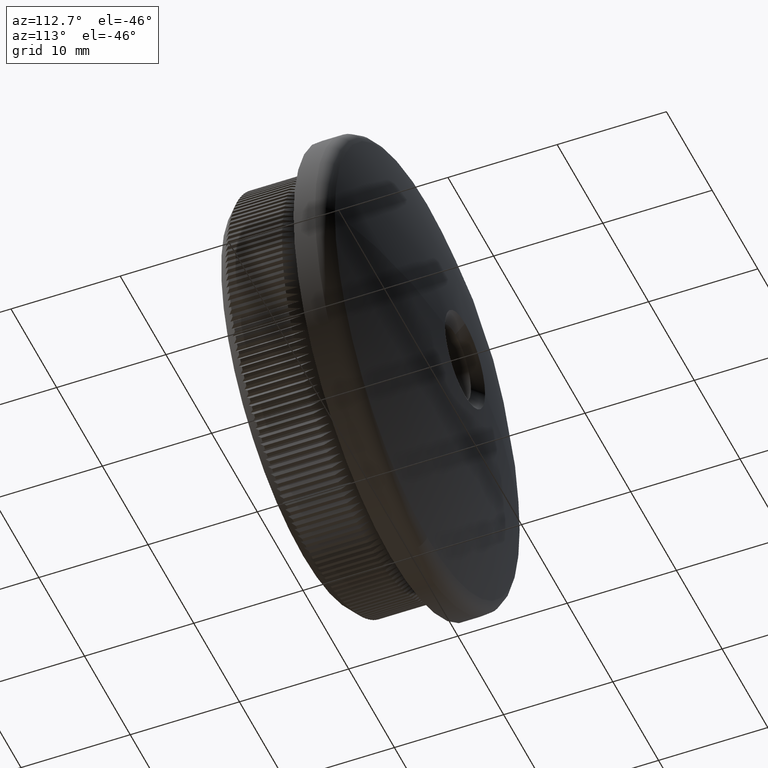
[diagram: clean part render]
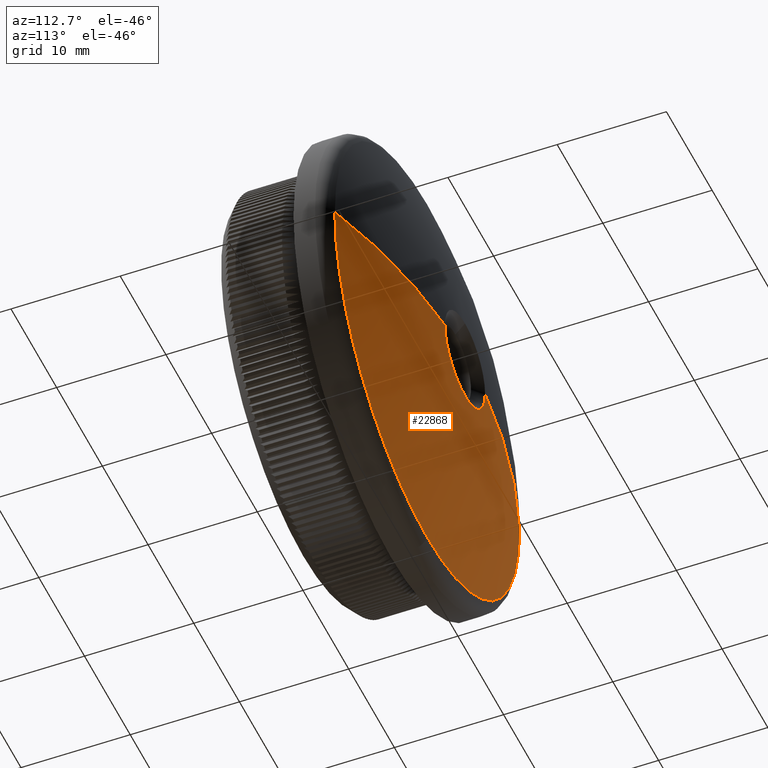
[diagram: same view with one face highlighted and labeled with its STEP entity id]
A machine part, auxiliary view. The second image highlights one B-rep face of the part: STEP entity #22868.
In plain terms, the highlighted spherical surface has radius 58.18 mm.
Its self-contained STEP definition (entity closure, byte-faithful):
#450 = CARTESIAN_POINT ( 'NONE',  ( 0.0000000000000000000, -43.18000000000007100, 0.0000000000000000000 ) ) ;
#748 = DIRECTION ( 'NONE',  ( 0.0000000000000000000, 0.0000000000000000000, 1.000000000000000000 ) ) ;
#1016 = CARTESIAN_POINT ( 'NONE',  ( 20.22134791813689200, 11.37281375303809700, 0.0000000000000000000 ) ) ;
#1442 = EDGE_CURVE ( 'NONE', #20355, #29121, #9129, .T. ) ;
#1527 = FACE_OUTER_BOUND ( 'NONE', #5247, .T. ) ;
#2080 = DIRECTION ( 'NONE',  ( 0.0000000000000000000, 0.0000000000000000000, -1.000000000000000000 ) ) ;
#2249 = ORIENTED_EDGE ( 'NONE', *, *, #28615, .T. ) ;
#3546 = CARTESIAN_POINT ( 'NONE',  ( 0.0000000000000000000, 14.83418710009236300, 0.0000000000000000000 ) ) ;
#3708 = ORIENTED_EDGE ( 'NONE', *, *, #28664, .T. ) ;
#4019 = CARTESIAN_POINT ( 'NONE',  ( 0.0000000000000000000, 11.37281375303810000, 0.0000000000000000000 ) ) ;
#4518 = CARTESIAN_POINT ( 'NONE',  ( 4.389361584043620600, 14.83418710009236300, 0.0000000000000000000 ) ) ;
#5247 = EDGE_LOOP ( 'NONE', ( #6308, #9504, #11983, #9422, #2249, #3708 ) ) ;
#5820 = AXIS2_PLACEMENT_3D ( 'NONE', #8603, #13349, #27908 ) ;
#6290 = DIRECTION ( 'NONE',  ( 0.0000000000000000000, 1.000000000000000000, 0.0000000000000000000 ) ) ;
#6308 = ORIENTED_EDGE ( 'NONE', *, *, #23633, .F. ) ;
#6568 = AXIS2_PLACEMENT_3D ( 'NONE', #450, #748, #19405 ) ;
#7041 = EDGE_CURVE ( 'NONE', #18180, #20355, #16330, .T. ) ;
#8382 = DIRECTION ( 'NONE',  ( 0.0000000000000000000, 1.000000000000000000, 0.0000000000000000000 ) ) ;
#8603 = CARTESIAN_POINT ( 'NONE',  ( 0.0000000000000000000, -43.18000000000007100, 0.0000000000000000000 ) ) ;
#8656 = DIRECTION ( 'NONE',  ( 0.0000000000000000000, 0.0000000000000000000, -1.000000000000000000 ) ) ;
#9129 = CIRCLE ( 'NONE', #10286, 58.18000000000007100 ) ;
#9304 = AXIS2_PLACEMENT_3D ( 'NONE', #20210, #8382, #18535 ) ;
#9422 = ORIENTED_EDGE ( 'NONE', *, *, #1442, .T. ) ;
#9504 = ORIENTED_EDGE ( 'NONE', *, *, #10530, .T. ) ;
#10286 = AXIS2_PLACEMENT_3D ( 'NONE', #21845, #24218, #26510 ) ;
#10530 = EDGE_CURVE ( 'NONE', #11330, #18180, #13275, .T. ) ;
#11330 = VERTEX_POINT ( 'NONE', #17830 ) ;
#11644 = AXIS2_PLACEMENT_3D ( 'NONE', #4019, #6290, #22786 ) ;
#11983 = ORIENTED_EDGE ( 'NONE', *, *, #7041, .T. ) ;
#13275 = CIRCLE ( 'NONE', #29104, 4.389361584043620600 ) ;
#13349 = DIRECTION ( 'NONE',  ( 1.224646799147353200E-016, -0.0000000000000000000, 1.000000000000000000 ) ) ;
#14247 = CIRCLE ( 'NONE', #9304, 20.22134791813691000 ) ;
#14528 = CARTESIAN_POINT ( 'NONE',  ( -20.22134791813689200, 11.37281375303809700, 2.476400900239134100E-015 ) ) ;
#14604 = CIRCLE ( 'NONE', #11644, 20.22134791813691000 ) ;
#14771 = VERTEX_POINT ( 'NONE', #14528 ) ;
#15523 = AXIS2_PLACEMENT_3D ( 'NONE', #3546, #22508, #2080 ) ;
#16330 = CIRCLE ( 'NONE', #15523, 4.389361584043620600 ) ;
#17830 = CARTESIAN_POINT ( 'NONE',  ( -4.389361584043620600, 14.83418710009236300, 1.506971330829536000E-015 ) ) ;
#18180 = VERTEX_POINT ( 'NONE', #28753 ) ;
#18311 = CARTESIAN_POINT ( 'NONE',  ( 0.0000000000000000000, 14.83418710009236300, 0.0000000000000000000 ) ) ;
#18535 = DIRECTION ( 'NONE',  ( 0.0000000000000000000, 0.0000000000000000000, -1.000000000000000000 ) ) ;
#19405 = DIRECTION ( 'NONE',  ( 1.000000000000000000, 0.0000000000000000000, 0.0000000000000000000 ) ) ;
#20210 = CARTESIAN_POINT ( 'NONE',  ( 0.0000000000000000000, 11.37281375303810000, 0.0000000000000000000 ) ) ;
#20355 = VERTEX_POINT ( 'NONE', #4518 ) ;
#21741 = CARTESIAN_POINT ( 'NONE',  ( 0.0000000000000000000, 11.37281375303810000, -20.22134791813691000 ) ) ;
#21845 = CARTESIAN_POINT ( 'NONE',  ( 0.0000000000000000000, -43.18000000000007100, 0.0000000000000000000 ) ) ;
#22508 = DIRECTION ( 'NONE',  ( -0.0000000000000000000, -1.000000000000000000, -0.0000000000000000000 ) ) ;
#22786 = DIRECTION ( 'NONE',  ( 0.0000000000000000000, 0.0000000000000000000, -1.000000000000000000 ) ) ;
#22868 = ADVANCED_FACE ( 'NONE', ( #1527 ), #23761, .T. ) ;
#23228 = VERTEX_POINT ( 'NONE', #21741 ) ;
#23633 = EDGE_CURVE ( 'NONE', #11330, #14771, #27425, .T. ) ;
#23761 = SPHERICAL_SURFACE ( 'NONE', #6568, 58.18000000000007100 ) ;
#24218 = DIRECTION ( 'NONE',  ( 0.0000000000000000000, 0.0000000000000000000, -1.000000000000000000 ) ) ;
#26510 = DIRECTION ( 'NONE',  ( -1.000000000000000000, 0.0000000000000000000, 0.0000000000000000000 ) ) ;
#27425 = CIRCLE ( 'NONE', #5820, 58.18000000000007100 ) ;
#27908 = DIRECTION ( 'NONE',  ( 1.000000000000000000, 0.0000000000000000000, -1.224646799147353500E-016 ) ) ;
#28615 = EDGE_CURVE ( 'NONE', #29121, #23228, #14604, .T. ) ;
#28664 = EDGE_CURVE ( 'NONE', #23228, #14771, #14247, .T. ) ;
#28753 = CARTESIAN_POINT ( 'NONE',  ( 5.375417614199396000E-016, 14.83418710009236300, -4.389361584043635700 ) ) ;
#29104 = AXIS2_PLACEMENT_3D ( 'NONE', #18311, #29939, #8656 ) ;
#29121 = VERTEX_POINT ( 'NONE', #1016 ) ;
#29939 = DIRECTION ( 'NONE',  ( -0.0000000000000000000, -1.000000000000000000, -0.0000000000000000000 ) ) ;